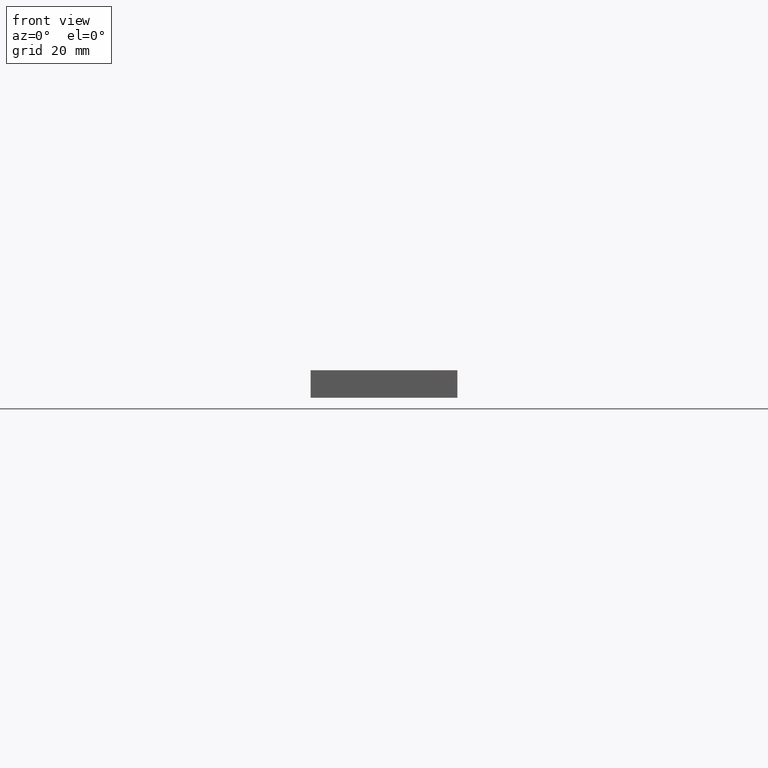
[diagram: clean part render]
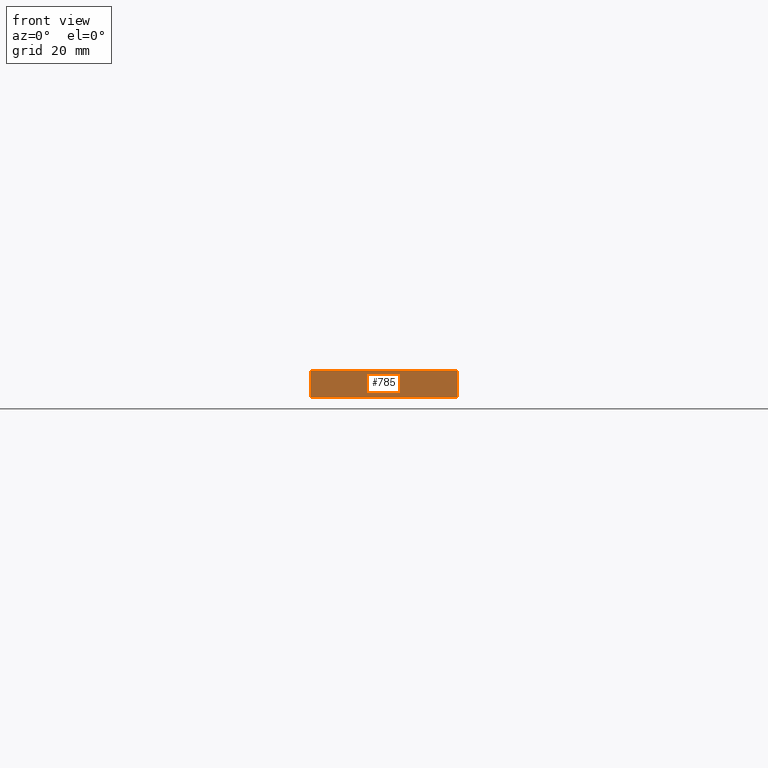
[diagram: same view with one face highlighted and labeled with its STEP entity id]
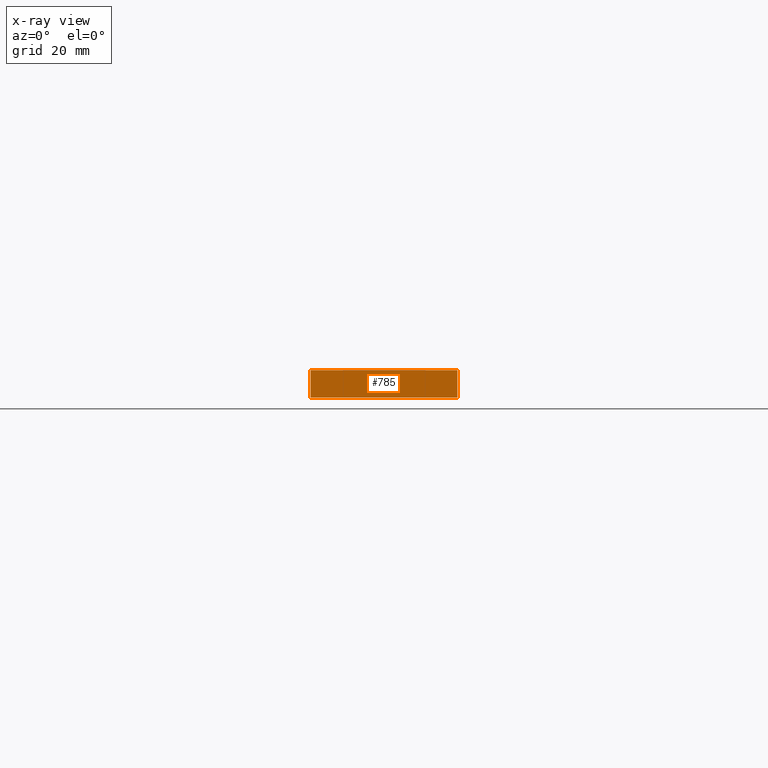
[diagram: x-ray of the same camera — body ghosted, the highlighted face saturated]
A machine part, front view. The second image highlights one B-rep face of the part: STEP entity #785.
The next image is the same camera in x-ray: the body ghosted, the highlighted face saturated — about 0% of this face is hidden behind the body in this view.
In plain terms, the highlighted planar face has unit normal (0, 1, 0).
Its self-contained STEP definition (entity closure, byte-faithful):
#263 = EDGE_CURVE ( 'NONE', #5279, #6871, #6961, .T. ) ;
#663 = EDGE_CURVE ( 'NONE', #6871, #4206, #7709, .T. ) ;
#785 = ADVANCED_FACE ( 'NONE', ( #8587 ), #2824, .F. ) ;
#814 = LINE ( 'NONE', #4685, #9700 ) ;
#973 = DIRECTION ( 'NONE',  ( -0.0000000000000000000, -0.0000000000000000000, -1.000000000000000000 ) ) ;
#1762 = EDGE_LOOP ( 'NONE', ( #9449, #5868, #3920, #6251 ) ) ;
#1997 = CARTESIAN_POINT ( 'NONE',  ( -15.99999999999998600, -77.99999999999998600, 0.0000000000000000000 ) ) ;
#2476 = VECTOR ( 'NONE', #973, 1000.000000000000000 ) ;
#2583 = CARTESIAN_POINT ( 'NONE',  ( 16.00000000000001100, -77.99999999999998600, 0.0000000000000000000 ) ) ;
#2824 = PLANE ( 'NONE',  #10070 ) ;
#3029 = DIRECTION ( 'NONE',  ( 1.000000000000000000, 0.0000000000000000000, 0.0000000000000000000 ) ) ;
#3387 = DIRECTION ( 'NONE',  ( 1.000000000000000000, 0.0000000000000000000, 0.0000000000000000000 ) ) ;
#3920 = ORIENTED_EDGE ( 'NONE', *, *, #263, .F. ) ;
#4206 = VERTEX_POINT ( 'NONE', #2583 ) ;
#4426 = CARTESIAN_POINT ( 'NONE',  ( -15.99999999999998600, -77.99999999999998600, 6.000000000000000000 ) ) ;
#4500 = EDGE_CURVE ( 'NONE', #5279, #8401, #5829, .T. ) ;
#4685 = CARTESIAN_POINT ( 'NONE',  ( -15.99999999999998600, -77.99999999999998600, 0.0000000000000000000 ) ) ;
#5279 = VERTEX_POINT ( 'NONE', #5662 ) ;
#5470 = VECTOR ( 'NONE', #8884, 1000.000000000000000 ) ;
#5662 = CARTESIAN_POINT ( 'NONE',  ( -15.99999999999998600, -77.99999999999998600, 6.000000000000000000 ) ) ;
#5829 = LINE ( 'NONE', #7970, #5470 ) ;
#5853 = CARTESIAN_POINT ( 'NONE',  ( -15.99999999999998600, -77.99999999999998600, 6.000000000000000000 ) ) ;
#5868 = ORIENTED_EDGE ( 'NONE', *, *, #663, .F. ) ;
#6251 = ORIENTED_EDGE ( 'NONE', *, *, #4500, .T. ) ;
#6871 = VERTEX_POINT ( 'NONE', #7851 ) ;
#6889 = DIRECTION ( 'NONE',  ( 0.0000000000000000000, -0.0000000000000000000, 1.000000000000000000 ) ) ;
#6938 = EDGE_CURVE ( 'NONE', #8401, #4206, #814, .T. ) ;
#6961 = LINE ( 'NONE', #5853, #8984 ) ;
#7709 = LINE ( 'NONE', #8073, #2476 ) ;
#7851 = CARTESIAN_POINT ( 'NONE',  ( 16.00000000000001100, -77.99999999999998600, 6.000000000000000000 ) ) ;
#7970 = CARTESIAN_POINT ( 'NONE',  ( -15.99999999999998600, -77.99999999999998600, 6.000000000000000000 ) ) ;
#8073 = CARTESIAN_POINT ( 'NONE',  ( 16.00000000000001100, -77.99999999999998600, 6.000000000000000000 ) ) ;
#8401 = VERTEX_POINT ( 'NONE', #1997 ) ;
#8587 = FACE_OUTER_BOUND ( 'NONE', #1762, .T. ) ;
#8884 = DIRECTION ( 'NONE',  ( -0.0000000000000000000, -0.0000000000000000000, -1.000000000000000000 ) ) ;
#8984 = VECTOR ( 'NONE', #3387, 1000.000000000000000 ) ;
#9188 = DIRECTION ( 'NONE',  ( 0.0000000000000000000, 1.000000000000000000, 0.0000000000000000000 ) ) ;
#9449 = ORIENTED_EDGE ( 'NONE', *, *, #6938, .T. ) ;
#9700 = VECTOR ( 'NONE', #3029, 1000.000000000000000 ) ;
#10070 = AXIS2_PLACEMENT_3D ( 'NONE', #4426, #9188, #6889 ) ;